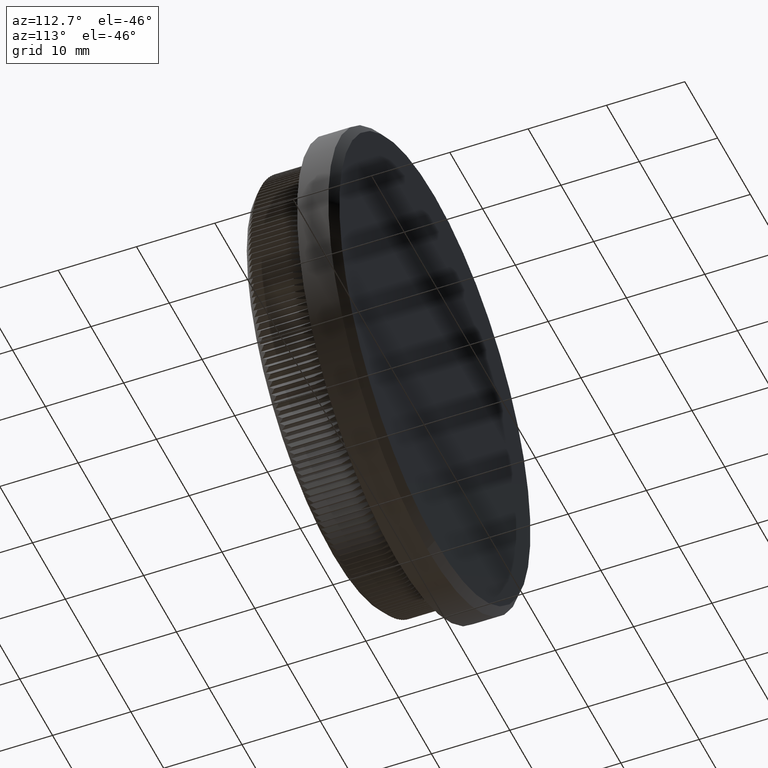
[diagram: clean part render]
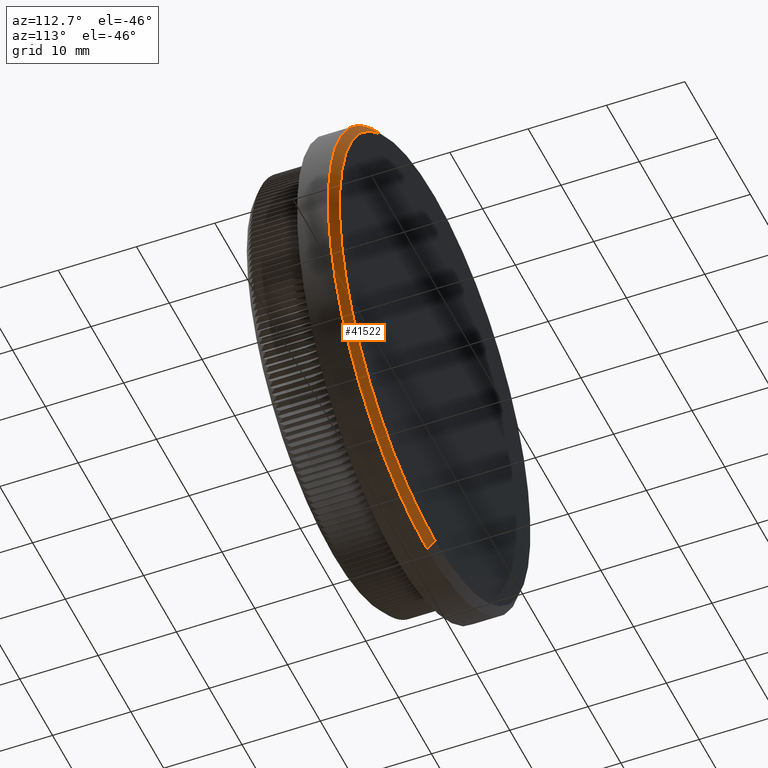
[diagram: same view with one face highlighted and labeled with its STEP entity id]
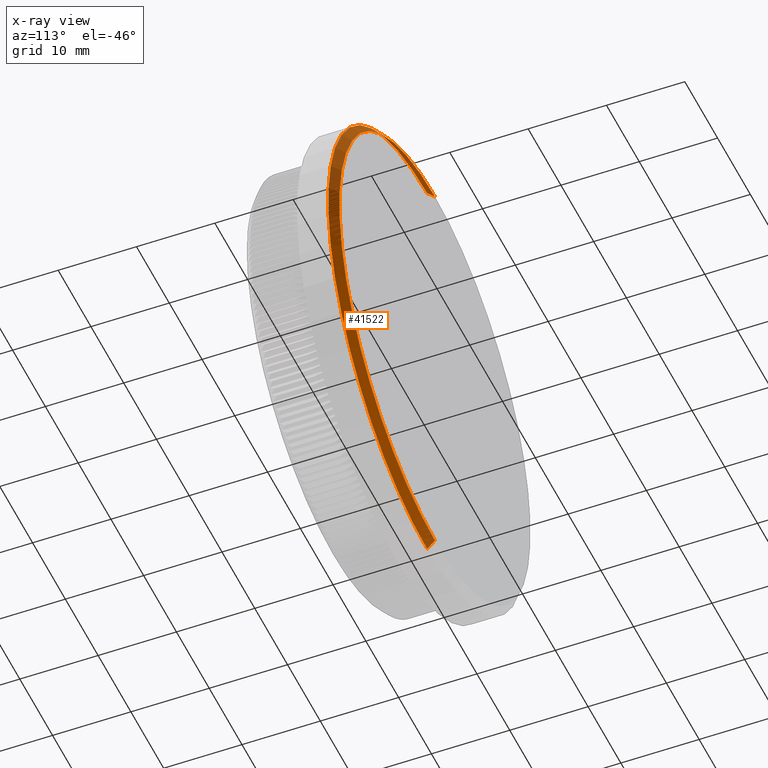
[diagram: x-ray of the same camera — body ghosted, the highlighted face saturated]
A machine part, auxiliary view. The second image highlights one B-rep face of the part: STEP entity #41522.
The next image is the same camera in x-ray: the body ghosted, the highlighted face saturated — about 0% of this face is hidden behind the body in this view.
In plain terms, the highlighted conical surface has half-angle 45 deg.
Its self-contained STEP definition (entity closure, byte-faithful):
#1199 = CARTESIAN_POINT ( 'NONE',  ( 0.000000000000000000, 11.99999999999998757, -30.14999999999999503 ) ) ;
#3009 = CARTESIAN_POINT ( 'NONE',  ( 3.692310099429269608E-15, 11.99999999999998757, 30.14999999999999503 ) ) ;
#3052 = DIRECTION ( 'NONE',  ( 0.000000000000000000, 0.000000000000000000, 1.000000000000000000 ) ) ;
#3608 = VERTEX_POINT ( 'NONE', #23192 ) ;
#4372 = DIRECTION ( 'NONE',  ( 0.000000000000000000, 0.000000000000000000, -1.000000000000000000 ) ) ;
#4860 = EDGE_CURVE ( 'NONE', #5776, #3608, #23418, .T. ) ;
#5535 = EDGE_LOOP ( 'NONE', ( #24365, #9296, #37002, #11226 ) ) ;
#5675 = CARTESIAN_POINT ( 'NONE',  ( 3.631077759471901245E-15, 13.00000000000000000, 29.14999999999998437 ) ) ;
#5776 = VERTEX_POINT ( 'NONE', #5675 ) ;
#7348 = EDGE_CURVE ( 'NONE', #3608, #25975, #35696, .T. ) ;
#8461 = FACE_OUTER_BOUND ( 'NONE', #5535, .T. ) ;
#9296 = ORIENTED_EDGE ( 'NONE', *, *, #13991, .T. ) ;
#9999 = DIRECTION ( 'NONE',  ( -0.000000000000000000, -1.000000000000000000, -0.000000000000000000 ) ) ;
#11226 = ORIENTED_EDGE ( 'NONE', *, *, #7348, .F. ) ;
#13991 = EDGE_CURVE ( 'NONE', #5776, #36743, #29277, .T. ) ;
#14733 = VECTOR ( 'NONE', #16024, 1000.000000000000114 ) ;
#16024 = DIRECTION ( 'NONE',  ( 8.659560562354932858E-17, -0.7071067811865474617, 0.7071067811865474617 ) ) ;
#19305 = CARTESIAN_POINT ( 'NONE',  ( 0.000000000000000000, 11.99999999999998757, 0.000000000000000000 ) ) ;
#20066 = CARTESIAN_POINT ( 'NONE',  ( 3.692310099429269608E-15, 11.99999999999998757, 30.14999999999999503 ) ) ;
#20742 = CARTESIAN_POINT ( 'NONE',  ( 0.000000000000000000, 11.99999999999998757, 0.000000000000000000 ) ) ;
#21765 = CARTESIAN_POINT ( 'NONE',  ( 0.000000000000000000, 11.99999999999998757, -30.14999999999999503 ) ) ;
#23192 = CARTESIAN_POINT ( 'NONE',  ( 0.000000000000000000, 13.00000000000000000, -29.14999999999998437 ) ) ;
#23418 = CIRCLE ( 'NONE', #27536, 29.14999999999998437 ) ;
#24365 = ORIENTED_EDGE ( 'NONE', *, *, #4860, .F. ) ;
#25975 = VERTEX_POINT ( 'NONE', #21765 ) ;
#27536 = AXIS2_PLACEMENT_3D ( 'NONE', #27731, #37661, #31234 ) ;
#27731 = CARTESIAN_POINT ( 'NONE',  ( 0.000000000000000000, 13.00000000000000000, 0.000000000000000000 ) ) ;
#29277 = LINE ( 'NONE', #3009, #14733 ) ;
#30132 = AXIS2_PLACEMENT_3D ( 'NONE', #19305, #9999, #3052 ) ;
#31234 = DIRECTION ( 'NONE',  ( 0.000000000000000000, 0.000000000000000000, 1.000000000000000000 ) ) ;
#31687 = VECTOR ( 'NONE', #33041, 1000.000000000000114 ) ;
#32166 = CIRCLE ( 'NONE', #30132, 30.14999999999999503 ) ;
#33041 = DIRECTION ( 'NONE',  ( 0.000000000000000000, -0.7071067811865474617, -0.7071067811865474617 ) ) ;
#33621 = CONICAL_SURFACE ( 'NONE', #38220, 30.14999999999999503, 0.7853981633974482790 ) ;
#33671 = DIRECTION ( 'NONE',  ( -0.000000000000000000, -1.000000000000000000, -0.000000000000000000 ) ) ;
#35696 = LINE ( 'NONE', #1199, #31687 ) ;
#36743 = VERTEX_POINT ( 'NONE', #20066 ) ;
#37002 = ORIENTED_EDGE ( 'NONE', *, *, #40177, .F. ) ;
#37661 = DIRECTION ( 'NONE',  ( 0.000000000000000000, 1.000000000000000000, 0.000000000000000000 ) ) ;
#38220 = AXIS2_PLACEMENT_3D ( 'NONE', #20742, #33671, #4372 ) ;
#40177 = EDGE_CURVE ( 'NONE', #25975, #36743, #32166, .T. ) ;
#41522 = ADVANCED_FACE ( 'NONE', ( #8461 ), #33621, .T. ) ;